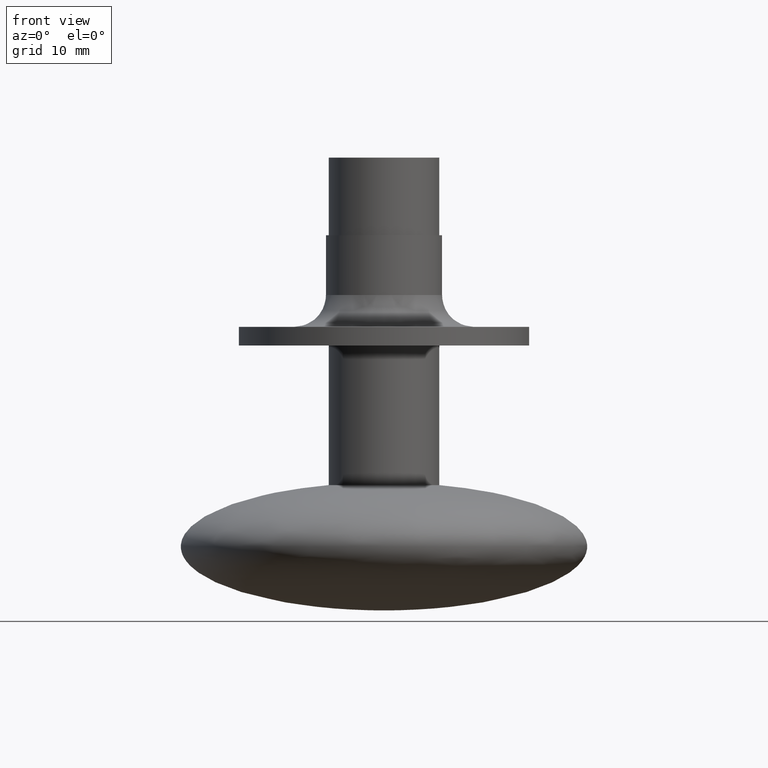
[diagram: clean part render]
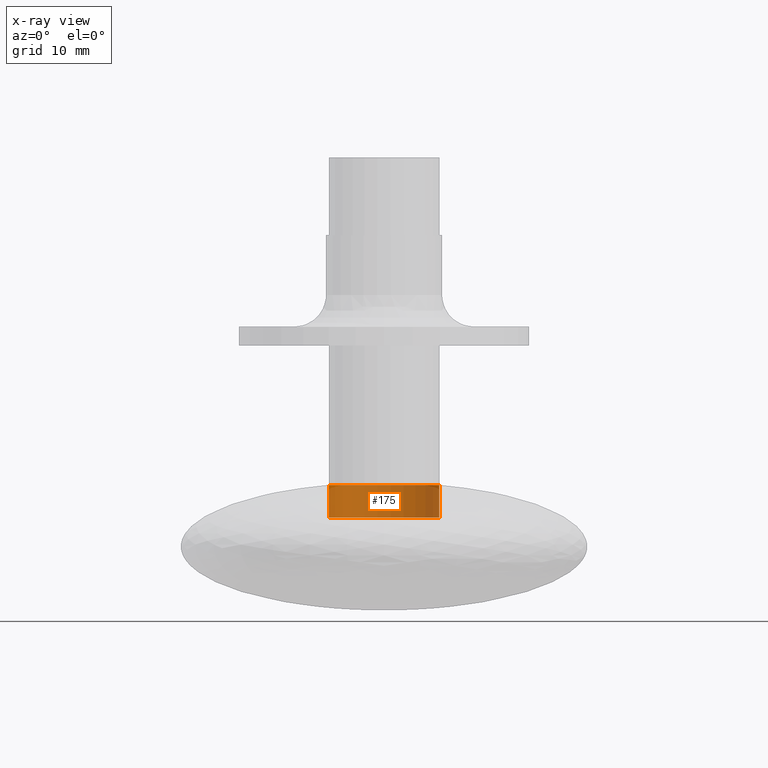
[diagram: x-ray — body ghosted, one internal face saturated and labeled with its STEP entity id]
A machine part, front view, then the same camera in x-ray: the body is ghosted and one INTERNAL B-rep face — a face not visible from any outside direction — is saturated and labeled: STEP entity #175.
In plain terms, the highlighted cylindrical surface (partial cylindrical patch) has radius 4.7625 mm, axis along (0, 0, 1).
Its self-contained STEP definition (entity closure, byte-faithful):
#175=ADVANCED_FACE('',(#447),#446,.F.);
#446=CYLINDRICAL_SURFACE('',#734,4.76250000000E+00);
#447=FACE_OUTER_BOUND('',#735,.T.);
#731=CARTESIAN_POINT('',(0.00000000000E+00,0.00000000000E+00,0.00000000000E+00));
#732=DIRECTION('',(-0.00000000000E+00,-0.00000000000E+00,1.00000000000E+00));
#733=DIRECTION('',(1.00000000000E+00,-0.00000000000E+00,-0.00000000000E+00));
#734=AXIS2_PLACEMENT_3D('',#731,#732,#733);
#735=EDGE_LOOP('',(#849,#850,#851,#852));
#849=ORIENTED_EDGE('',*,*,#908,.T.);
#850=ORIENTED_EDGE('',*,*,#913,.T.);
#851=ORIENTED_EDGE('',*,*,#910,.F.);
#852=ORIENTED_EDGE('',*,*,#914,.F.);
#908=EDGE_CURVE('',#1248,#1247,#1255,.T.);
#910=EDGE_CURVE('',#1261,#1269,#1270,.T.);
#913=EDGE_CURVE('',#1247,#1269,#1288,.T.);
#914=EDGE_CURVE('',#1248,#1261,#1294,.T.);
#1247=VERTEX_POINT('',#1500);
#1248=VERTEX_POINT('',#1501);
#1255=CIRCLE('',#1509,4.76250000000E+00);
#1261=VERTEX_POINT('',#1510);
#1269=VERTEX_POINT('',#1517);
#1270=CIRCLE('',#1521,4.76250000000E+00);
#1288=(BOUNDED_CURVE() B_SPLINE_CURVE(1,(#1531,#1532),.UNSPECIFIED.,.F.,.F.) B_SPLINE_CURVE_WITH_KNOTS((2,2),(8.33333233997E-02,9.16666663280E-01),.UNSPECIFIED.) CURVE() GEOMETRIC_REPRESENTATION_ITEM() RATIONAL_B_SPLINE_CURVE((1.00000000000E+00,1.00000000000E+00)) REPRESENTATION_ITEM('') );
#1294=(BOUNDED_CURVE() B_SPLINE_CURVE(1,(#1533,#1534),.UNSPECIFIED.,.F.,.F.) B_SPLINE_CURVE_WITH_KNOTS((2,2),(8.33333333333E-02,9.16666666667E-01),.UNSPECIFIED.) CURVE() GEOMETRIC_REPRESENTATION_ITEM() RATIONAL_B_SPLINE_CURVE((7.50000000000E-01,7.50000000000E-01)) REPRESENTATION_ITEM('') );
#1500=CARTESIAN_POINT('',(4.76250000000E+00,2.96059473233E-16,-3.10000000000E+01));
#1501=CARTESIAN_POINT('',(-4.76250000000E+00,0.00000000000E+00,-3.10000000000E+01));
#1506=CARTESIAN_POINT('',(0.00000000000E+00,0.00000000000E+00,-3.10000000000E+01));
#1507=DIRECTION('',(-0.00000000000E+00,0.00000000000E+00,-1.00000000000E+00));
#1508=DIRECTION('',(-1.00000000000E+00,-1.22460635382E-16,0.00000000000E+00));
#1509=AXIS2_PLACEMENT_3D('',#1506,#1507,#1508);
#1510=CARTESIAN_POINT('',(-4.76250000000E+00,0.00000000000E+00,-2.82075872680E+01));
#1517=CARTESIAN_POINT('',(4.76250000000E+00,2.96059473233E-16,-2.82075872680E+01));
#1518=CARTESIAN_POINT('',(0.00000000000E+00,0.00000000000E+00,-2.82075872680E+01));
#1519=DIRECTION('',(-0.00000000000E+00,0.00000000000E+00,-1.00000000000E+00));
#1520=DIRECTION('',(-1.00000000000E+00,-1.22460635382E-16,0.00000000000E+00));
#1521=AXIS2_PLACEMENT_3D('',#1518,#1519,#1520);
#1531=CARTESIAN_POINT('',(4.76250000000E+00,0.00000000000E+00,-3.10000000333E+01));
#1532=CARTESIAN_POINT('',(4.76250000000E+00,0.00000000000E+00,-2.82075872794E+01));
#1533=CARTESIAN_POINT('',(-4.76250000000E+00,-2.96059473233E-16,-3.10000000000E+01));
#1534=CARTESIAN_POINT('',(-4.76250000000E+00,-2.96059473233E-16,-2.82075872680E+01));